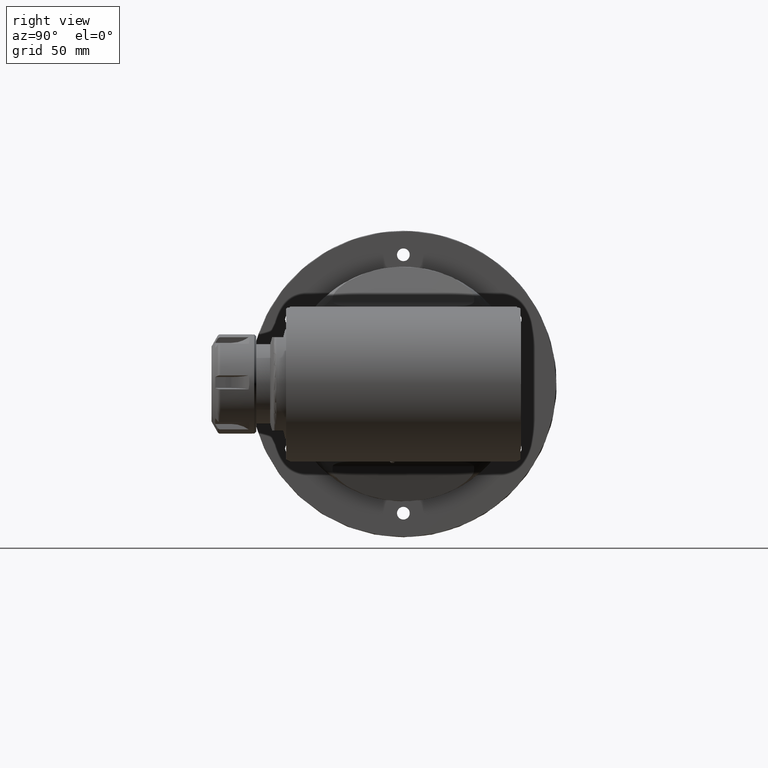
[diagram: clean part render]
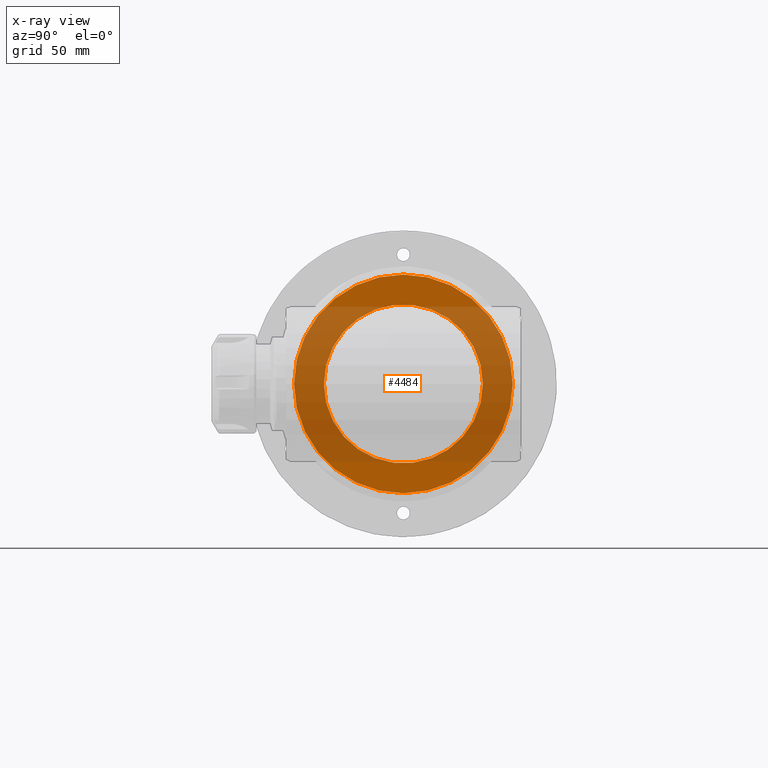
[diagram: x-ray — body ghosted, one internal face saturated and labeled with its STEP entity id]
A machine part, right view, then the same camera in x-ray: the body is ghosted and one INTERNAL B-rep face — a face not visible from any outside direction — is saturated and labeled: STEP entity #4484.
In plain terms, the highlighted planar face has unit normal (1, 0, 0).
Its self-contained STEP definition (entity closure, byte-faithful):
#131=FACE_BOUND('',#715,.T.);
#421=FACE_OUTER_BOUND('',#714,.T.);
#714=EDGE_LOOP('',(#3140));
#715=EDGE_LOOP('',(#3141));
#1095=CIRCLE('',#4849,55.);
#1096=CIRCLE('',#4851,40.);
#1925=VERTEX_POINT('',#7284);
#1926=VERTEX_POINT('',#7288);
#2400=EDGE_CURVE('',#1925,#1925,#1095,.T.);
#2401=EDGE_CURVE('',#1926,#1926,#1096,.T.);
#3140=ORIENTED_EDGE('',*,*,#2400,.T.);
#3141=ORIENTED_EDGE('',*,*,#2401,.T.);
#4337=PLANE('',#4850);
#4484=ADVANCED_FACE('',(#421,#131),#4337,.F.);
#4849=AXIS2_PLACEMENT_3D('',#7286,#5510,#5511);
#4850=AXIS2_PLACEMENT_3D('',#7287,#5512,#5513);
#4851=AXIS2_PLACEMENT_3D('',#7289,#5514,#5515);
#5510=DIRECTION('center_axis',(-1.,0.,0.));
#5511=DIRECTION('ref_axis',(0.,-1.,0.));
#5512=DIRECTION('center_axis',(1.,0.,0.));
#5513=DIRECTION('ref_axis',(0.,-1.,0.));
#5514=DIRECTION('center_axis',(1.,0.,0.));
#5515=DIRECTION('ref_axis',(0.,1.,0.));
#7284=CARTESIAN_POINT('',(-207.499999999998,54.9999999999966,6.73555739531003E-15));
#7286=CARTESIAN_POINT('Origin',(-207.5,0.,0.));
#7287=CARTESIAN_POINT('Origin',(-207.5,50.6886,0.));
#7288=CARTESIAN_POINT('',(-207.5,-40.,4.89858719658941E-15));
#7289=CARTESIAN_POINT('Origin',(-207.5,0.,0.));